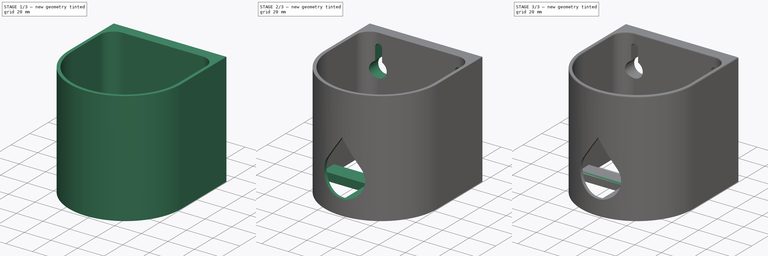
[diagram: build sequence overview — one tinted view per stage of 3, left to right]
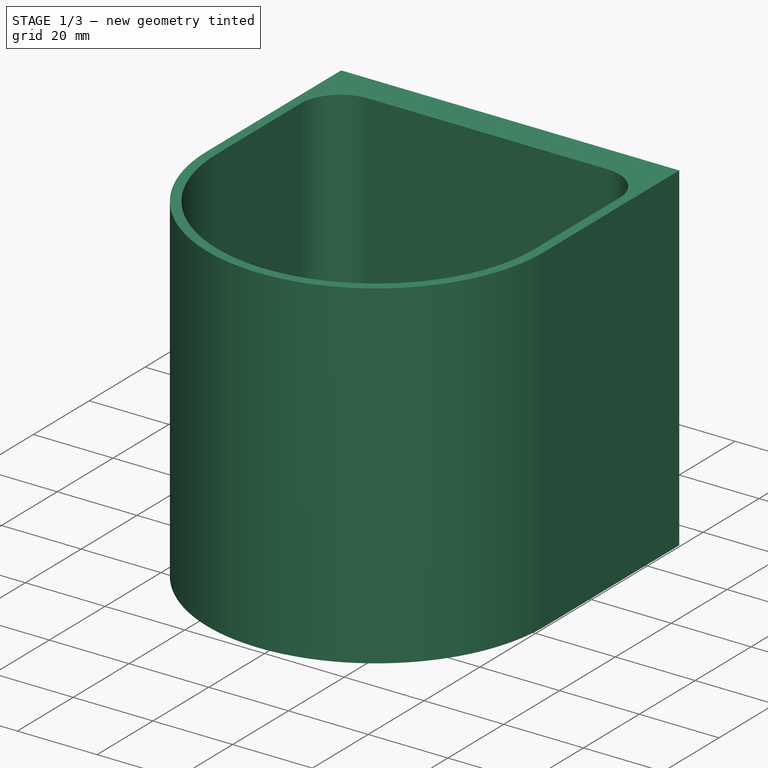
[diagram: stage 1 of 3 — iso view after this stage's code; geometry added in this stage tinted green]
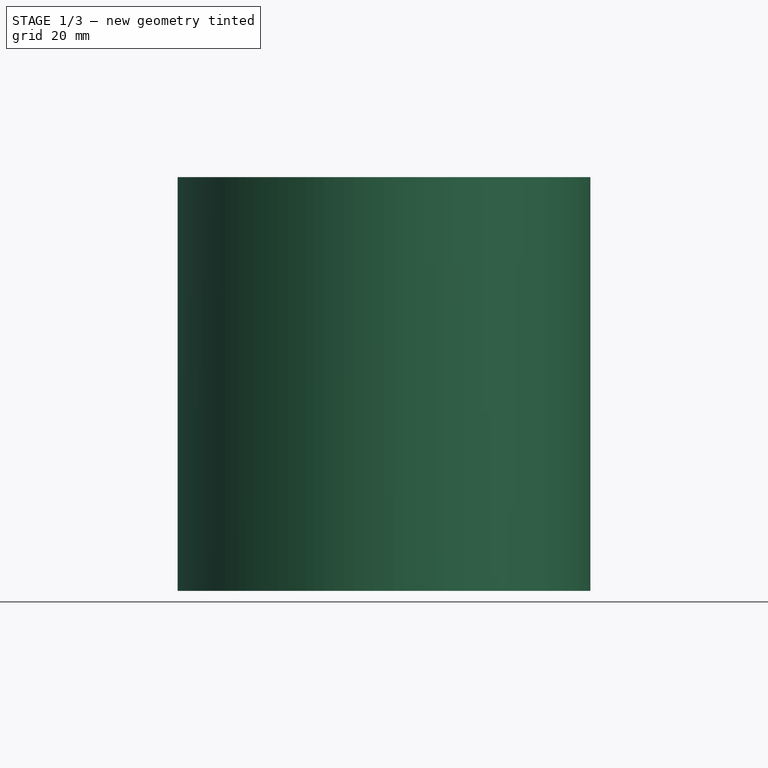
[diagram: stage 1 of 3 — front view after this stage's code; geometry added in this stage tinted green]
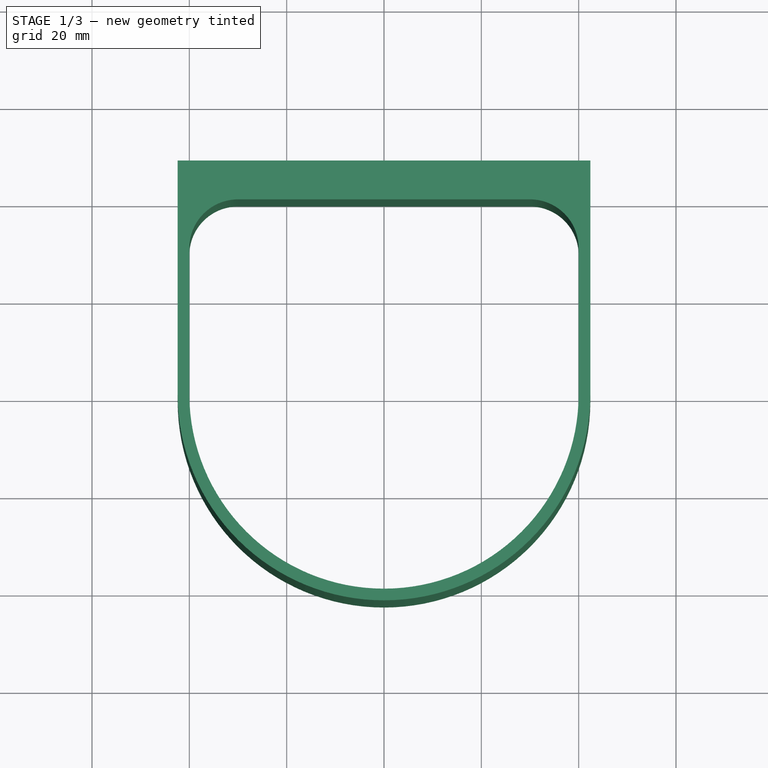
[diagram: stage 1 of 3 — top view after this stage's code; geometry added in this stage tinted green]
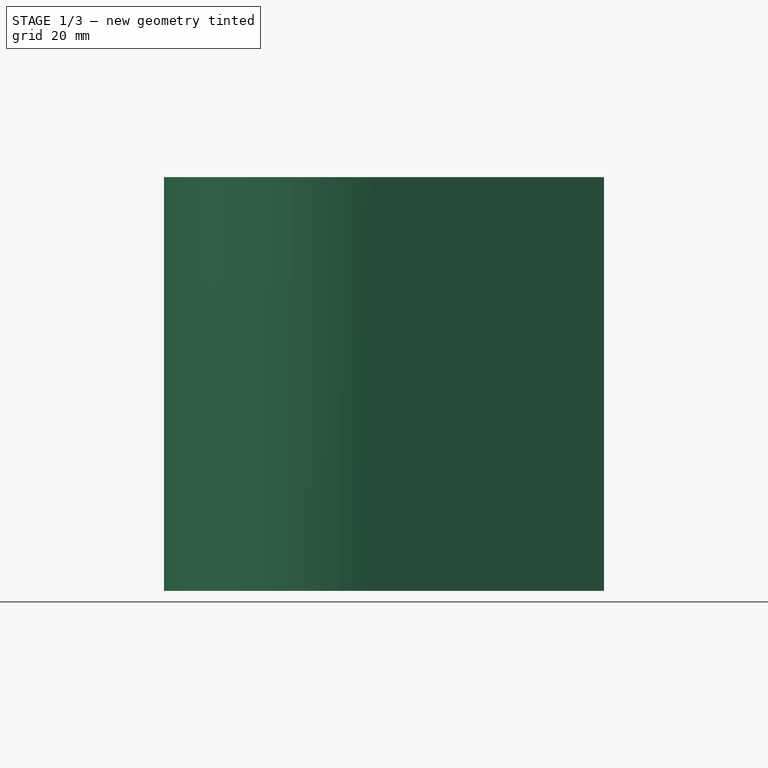
[diagram: stage 1 of 3 — right view after this stage's code; geometry added in this stage tinted green]
FCSTD DOCUMENT  (FreeCAD 0.21R33771 (Git))
Label: 20240804a_seifenhalter_wand
License: All rights reserved
LicenseURL: http://en.wikipedia.org/wiki/All_rights_reserved
objects: Sketcher::SketchObject×4, PartDesign::Pad×2, PartDesign::Pocket×2, PartDesign::Mirrored×1, PartDesign::Fillet×1, PartDesign::Chamfer×1, PartDesign::Body×1
note: 18 computed .brp shape members not serialized (recipe doc carries the construction recipe); baked Part::Feature solids carry a one-line shape summary decoded from their .brp

FEATURE [Sketcher::SketchObject] Sketch
  FullyConstrained = true
  MapMode = 5
  Support = -> [XY_Plane]
  sketch-geometry (10):
    g0: Circle CenterX=0 CenterY=0 CenterZ=0 NormalX=0 NormalY=0 NormalZ=1 AngleXU=0 Radius=40
    g1: LineSegment StartX=40 StartY=30 StartZ=0 EndX=40 EndY=-1.07e-14 EndZ=0
    g2: LineSegment StartX=0 StartY=40 StartZ=0 EndX=30 EndY=40 EndZ=0
    g3: ArcOfCircle CenterX=0 CenterY=0 CenterZ=0 NormalX=0 NormalY=0 NormalZ=1 AngleXU=0 Radius=40 StartAngle=4.71239 EndAngle=6.28319
    g4: ArcOfCircle CenterX=0 CenterY=0 CenterZ=0 NormalX=0 NormalY=0 NormalZ=1 AngleXU=0 Radius=42.4 StartAngle=4.71239 EndAngle=6.28319
    g5: LineSegment StartX=-7.3e-15 StartY=-40 StartZ=0 EndX=0 EndY=-42.4 EndZ=0
    g6: LineSegment StartX=0 StartY=48 StartZ=0 EndX=42.4 EndY=48 EndZ=0
    g7: LineSegment StartX=42.4 StartY=48 StartZ=0 EndX=42.4 EndY=0 EndZ=0
    g8: LineSegment StartX=0 StartY=48 StartZ=0 EndX=0 EndY=40 EndZ=0
    g9: ArcOfCircle CenterX=30 CenterY=30 CenterZ=0 NormalX=0 NormalY=0 NormalZ=1 AngleXU=0 Radius=10 StartAngle=0 EndAngle=1.5708
  constraints (28):
    c: Coincident(g0,g-1)
    c: Diameter(g0) = 80
    c: PointOnObject(g1,g-1)
    c: Vertical(g1)
    c: Horizontal(g2)
    c: PointOnObject(g2,g-2)
    c: Coincident(g3,g0)
    c: Coincident(g3,g1)
    c: PointOnObject(g3,g-2)
    c: Coincident(g4,g3)
    c: PointOnObject(g4,g-1)
    c: PointOnObject(g4,g-2)
    c: Coincident(g5,g3)
    c: Coincident(g5,g4)
    c: PointOnObject(g6,g-2)
    c: Horizontal(g6)
    c: Coincident(g7,g6)
    c: Coincident(g7,g4)
    c: Vertical(g7)
    c: Coincident(g8,g6)
    c: Coincident(g8,g2)
    c: DistanceY(g8,g8) = 8
    c: DistanceY(g5,g5) = 2.4
    c: Tangent(g1,g9) = 1.5708
    c: Tangent(g2,g9) = 1.5708
    c: Radius(g9) = 10
    c: PointOnObject(g2,g0)
    c: PointOnObject(g3,g0)
FEATURE [PartDesign::Pad] Pad
  Direction = (0,0,1)
  Length = 85
  Length2 = 10
  Profile = -> Sketch
  ReferenceAxis = -> Sketch [N_Axis]
  Type = 0
FEATURE [PartDesign::Mirrored] Mirrored
  BaseFeature = -> Pad
  MirrorPlane = -> Sketch [V_Axis]
  Originals = -> [Pad]
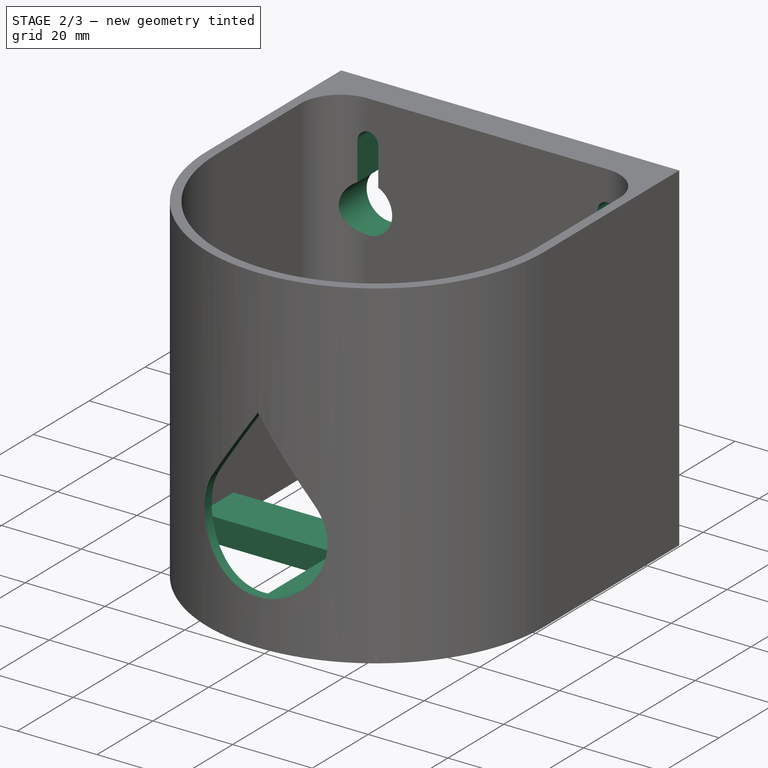
[diagram: stage 2 of 3 — iso view after this stage's code; geometry added in this stage tinted green]
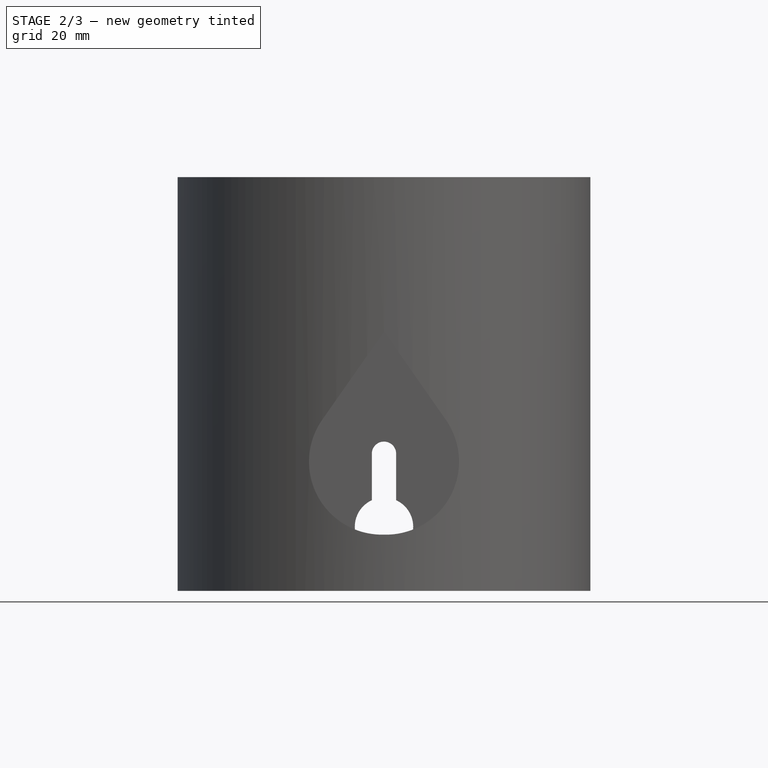
[diagram: stage 2 of 3 — front view after this stage's code; geometry added in this stage tinted green]
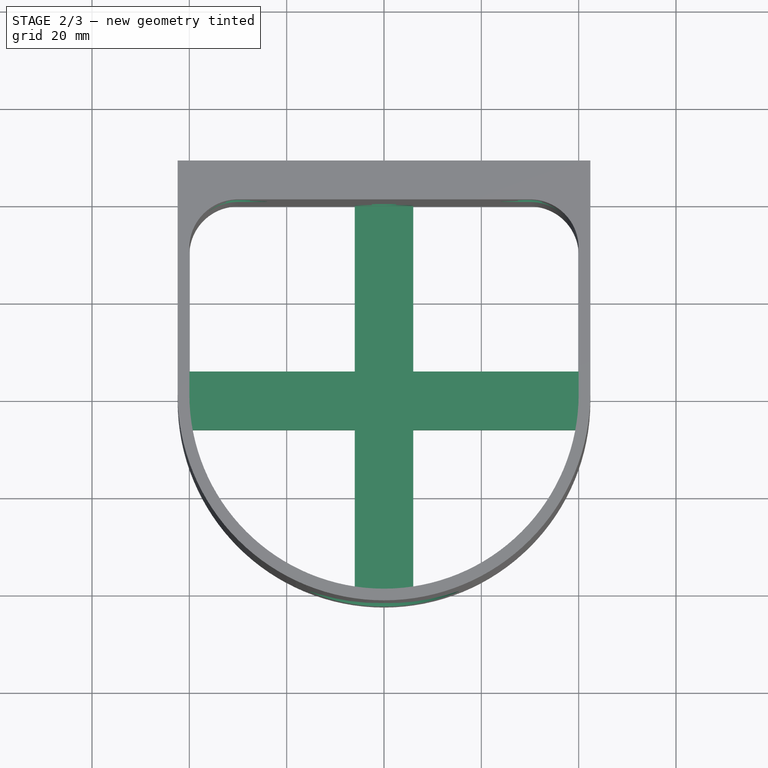
[diagram: stage 2 of 3 — top view after this stage's code; geometry added in this stage tinted green]
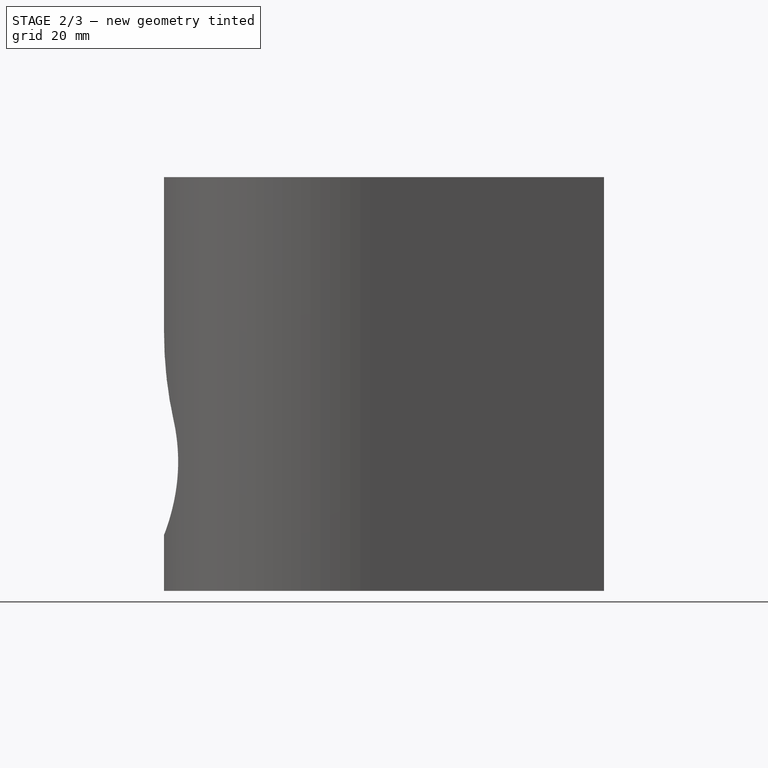
[diagram: stage 2 of 3 — right view after this stage's code; geometry added in this stage tinted green]
FEATURE [Sketcher::SketchObject] Sketch001
  FullyConstrained = false
  MapMode = 5
  Support = -> [XY_Plane]
  sketch-geometry (17):
    g0: LineSegment StartX=6 StartY=-41.5072 StartZ=0 EndX=6 EndY=-6 EndZ=0
    g1: LineSegment StartX=6 StartY=41.5072 StartZ=0 EndX=-6 EndY=41.5072 EndZ=0
    g2: LineSegment StartX=-6 StartY=41.5072 StartZ=0 EndX=-6 EndY=6 EndZ=0
    g3: LineSegment StartX=-6 StartY=-41.5072 StartZ=0 EndX=6 EndY=-41.5072 EndZ=0
    g4: GeomPoint X=0 Y=0 Z=0
    g5: LineSegment StartX=40.956 StartY=-6 StartZ=0 EndX=40.956 EndY=6 EndZ=0
    g6: LineSegment StartX=40.956 StartY=6 StartZ=0 EndX=6 EndY=6 EndZ=0
    g7: LineSegment StartX=-40.956 StartY=6 StartZ=0 EndX=-40.956 EndY=-6 EndZ=0
    g8: LineSegment StartX=-40.956 StartY=-6 StartZ=0 EndX=-6 EndY=-6 EndZ=0
    g9: GeomPoint X=0 Y=0 Z=0
    g10: LineSegment StartX=-6 StartY=-6 StartZ=0 EndX=-6 EndY=-41.5072 EndZ=0
    g11: LineSegment StartX=-6 StartY=6 StartZ=0 EndX=-40.956 EndY=6 EndZ=0
    g12: LineSegment StartX=6 StartY=6 StartZ=0 EndX=6 EndY=41.5072 EndZ=0
    g13: LineSegment StartX=6 StartY=-6 StartZ=0 EndX=40.956 EndY=-6 EndZ=0
    g14: LineSegment StartX=6 StartY=6 StartZ=0 EndX=-6 EndY=-6 EndZ=0
    g15: LineSegment StartX=6 StartY=6 StartZ=0 EndX=-6 EndY=6 EndZ=0
    g16: LineSegment StartX=6 StartY=-6 StartZ=0 EndX=-6 EndY=-6 EndZ=0
  constraints (39):
    c: Coincident(g12,g1)
    c: Coincident(g1,g2)
    c: Coincident(g10,g3)
    c: Coincident(g3,g0)
    c: Horizontal(g1)
    c: Vertical(g0)
    c: Vertical(g2)
    c: Symmetric(g1,g0,g4)
    c: Coincident(g4,g-1)
    c: Coincident(g5,g6)
    c: Coincident(g11,g7)
    c: Coincident(g7,g8)
    c: Coincident(g13,g5)
    c: Horizontal(g6)
    c: Horizontal(g8)
    c: Vertical(g5)
    c: Vertical(g7)
    c: Symmetric(g11,g5,g9)
    c: Coincident(g9,g4)
    c: Coincident(g11,g2)
    c: Coincident(g12,g6)
    c: Coincident(g8,g10)
    c: Coincident(g13,g0)
    c: Horizontal(g13)
    c: Coincident(g14,g6)
    c: Coincident(g14,g8)
    c: Horizontal(g11)
    c: Vertical(g10)
    c: Vertical(g12)
    c: PointOnObject(g4,g14)
    c: Symmetric(g0,g3,g-2)
    c: Coincident(g15,g6)
    c: Coincident(g15,g2)
    c: Horizontal(g15)
    c: Coincident(g16,g0)
    c: Coincident(g16,g8)
    c: Horizontal(g16)
    c: DistanceX(g3,g0) = 12
    c: DistanceY(g5,g5) = 12
FEATURE [PartDesign::Pad] Pad001
  BaseFeature = -> Mirrored
  Direction = (0,0,1)
  Length = 6
  Length2 = 10
  Profile = -> Sketch001
  ReferenceAxis = -> Sketch001 [N_Axis]
  Type = 0
FEATURE [Sketcher::SketchObject] Sketch002
  FullyConstrained = false
  MapMode = 5
  Placement = pos=(0,0,0) rot=(1,0,0;1.5708rad)
  Support = -> [XZ_Plane]
  sketch-geometry (8):
    g0: LineSegment StartX=0 StartY=53.2833 StartZ=0 EndX=-12.6989 EndY=35.1473 EndZ=0
    g1: LineSegment StartX=-0.411638 StartY=11.5437 StartZ=0 EndX=0.411638 EndY=11.5437 EndZ=0
    g2: LineSegment StartX=12.6989 StartY=35.1473 StartZ=0 EndX=0 EndY=53.2833 EndZ=0
    g3: Circle CenterX=0 CenterY=22.1812 CenterZ=0 NormalX=0 NormalY=0 NormalZ=1 AngleXU=0 Radius=31.1021
    g4: ArcOfCircle CenterX=0.411638 CenterY=26.5437 CenterZ=0 NormalX=0 NormalY=0 NormalZ=1 AngleXU=0 Radius=15 StartAngle=4.71239 EndAngle=6.89405
    g5: GeomPoint X=29.2264 Y=11.5437 Z=0
    g6: ArcOfCircle CenterX=-0.411638 CenterY=26.5437 CenterZ=0 NormalX=0 NormalY=0 NormalZ=1 AngleXU=0 Radius=15 StartAngle=2.53073 EndAngle=4.71239
    g7: GeomPoint X=-29.2264 Y=11.5437 Z=0
  constraints (18):
    c: Coincident(g2,g0)
    c: PointOnObject(g7,g3)
    c: PointOnObject(g5,g3)
    c: PointOnObject(g2,g3)
    c: PointOnObject(g3,g-2)
    c: PointOnObject(g0,g-2)
    c: PointOnObject(g5,g1)
    c: PointOnObject(g5,g2)
    c: Tangent(g1,g4) = -1.5708
    c: Tangent(g2,g4) = -1.5708
    c: PointOnObject(g7,g0)
    c: PointOnObject(g7,g1)
    c: Tangent(g0,g6) = -1.5708
    c: Tangent(g1,g6) = -1.5708
    c: Equal(g4,g6)
    c: Radius(g4) = 15
    c: Horizontal(g1)
    c: Angle(g0,g2) = 1.22173
FEATURE [PartDesign::Pocket] Pocket
  BaseFeature = -> Pad001
  Direction = (0,1,2e-16)
  Length = 5
  Length2 = 5
  Profile = -> Sketch002
  ReferenceAxis = -> Sketch002 [N_Axis]
  Reversed = true
  Type = 1
FEATURE [Sketcher::SketchObject] Sketch003
  FullyConstrained = false
  MapMode = 5
  Placement = pos=(0,0,0) rot=(1,0,0;1.5708rad)
  Support = -> [XZ_Plane]
  sketch-geometry (15):
    g0: ArcOfCircle CenterX=30 CenterY=60 CenterZ=0 NormalX=0 NormalY=0 NormalZ=1 AngleXU=0 Radius=6 StartAngle=2.00057 EndAngle=7.42421
    g1: ArcOfCircle CenterX=30 CenterY=75 CenterZ=0 NormalX=0 NormalY=0 NormalZ=1 AngleXU=0 Radius=2.5 StartAngle=-1.8e-15 EndAngle=3.14159
    g2: LineSegment StartX=27.5 StartY=75 StartZ=0 EndX=27.5 EndY=65.4544 EndZ=0
    g3: LineSegment StartX=32.5 StartY=65.4544 StartZ=0 EndX=32.5 EndY=75 EndZ=0
    g4: LineSegment StartX=30 StartY=75 StartZ=0 EndX=30 EndY=60 EndZ=0
    g5: ArcOfCircle CenterX=-30 CenterY=60 CenterZ=0 NormalX=0 NormalY=0 NormalZ=1 AngleXU=0 Radius=6 StartAngle=2.00057 EndAngle=7.42421
    g6: ArcOfCircle CenterX=-30 CenterY=75 CenterZ=0 NormalX=0 NormalY=0 NormalZ=1 AngleXU=0 Radius=2.5 StartAngle=3e-16 EndAngle=3.14159
    g7: LineSegment StartX=-32.5 StartY=75 StartZ=0 EndX=-32.5 EndY=65.4544 EndZ=0
    g8: LineSegment StartX=-27.5 StartY=65.4544 StartZ=0 EndX=-27.5 EndY=75 EndZ=0
    g9: LineSegment StartX=-30 StartY=75 StartZ=0 EndX=-30 EndY=60 EndZ=0
    g10: ArcOfCircle CenterX=0 CenterY=13.1636 CenterZ=0 NormalX=0 NormalY=0 NormalZ=1 AngleXU=0 Radius=6 StartAngle=2.00057 EndAngle=7.42421
    g11: ArcOfCircle CenterX=0 CenterY=28.1636 CenterZ=0 NormalX=0 NormalY=0 NormalZ=1 AngleXU=0 Radius=2.5 StartAngle=0 EndAngle=3.14159
    g12: LineSegment StartX=-2.5 StartY=28.1636 StartZ=0 EndX=-2.5 EndY=18.6179 EndZ=0
    g13: LineSegment StartX=2.5 StartY=18.6179 StartZ=0 EndX=2.5 EndY=28.1636 EndZ=0
    g14: LineSegment StartX=0 StartY=28.1636 StartZ=0 EndX=0 EndY=13.1636 EndZ=0
  constraints (40):
    c: Tangent(g1,g2) = -1.5708
    c: Tangent(g3,g1) = -1.5708
    c: Vertical(g2)
    c: Diameter(g0) = 12
    c: DistanceX(g1,g1) = 5
    c: Coincident(g2,g0)
    c: Coincident(g3,g0)
    c: DistanceY(g0,g1) = 15
    c: Coincident(g4,g1)
    c: Coincident(g4,g0)
    c: Vertical(g4)
    c: Vertical(g3)
    c: Tangent(g6,g7) = -1.5708
    c: Tangent(g8,g6) = -1.5708
    c: Vertical(g7)
    c: Equal(g0,g5) = 12
    c: Equal(g1,g6) = 5
    c: Coincident(g7,g5)
    c: Coincident(g8,g5)
    c: DistanceY(g5,g6) = 15
    c: Coincident(g9,g6)
    c: Coincident(g9,g5)
    c: Vertical(g9)
    c: Vertical(g8)
    c: Symmetric(g1,g6,g-2)
    c: DistanceX(g0) = 30
    c: DistanceY(g0) = 60
    c: Tangent(g11,g12) = -1.5708
    c: Tangent(g13,g11) = -1.5708
    c: Vertical(g12)
    c: Equal(g0,g10) = 12
    c: Equal(g1,g11) = 5
    c: Coincident(g12,g10)
    c: Coincident(g13,g10)
    c: DistanceY(g10,g11) = 15
    c: Coincident(g14,g11)
    c: Coincident(g14,g10)
    c: Vertical(g14)
    c: Vertical(g13)
    c: PointOnObject(g11,g-2)
FEATURE [PartDesign::Pocket] Pocket001
  BaseFeature = -> Pocket
  Direction = (0,1,2e-16)
  Length = 5
  Length2 = 5
  Profile = -> Sketch003
  ReferenceAxis = -> Sketch003 [N_Axis]
  Type = 1
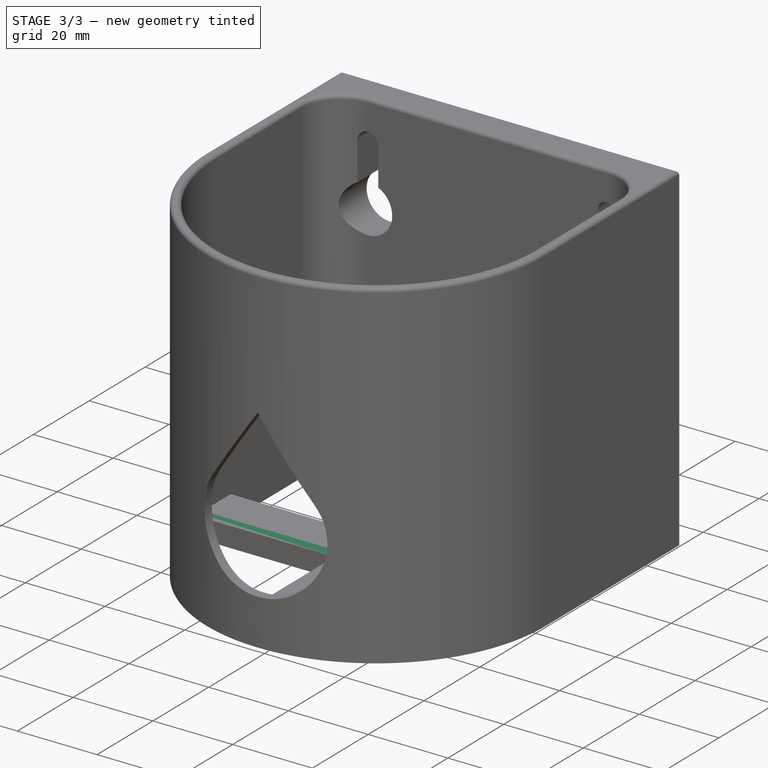
[diagram: stage 3 of 3 — iso view after this stage's code; geometry added in this stage tinted green]
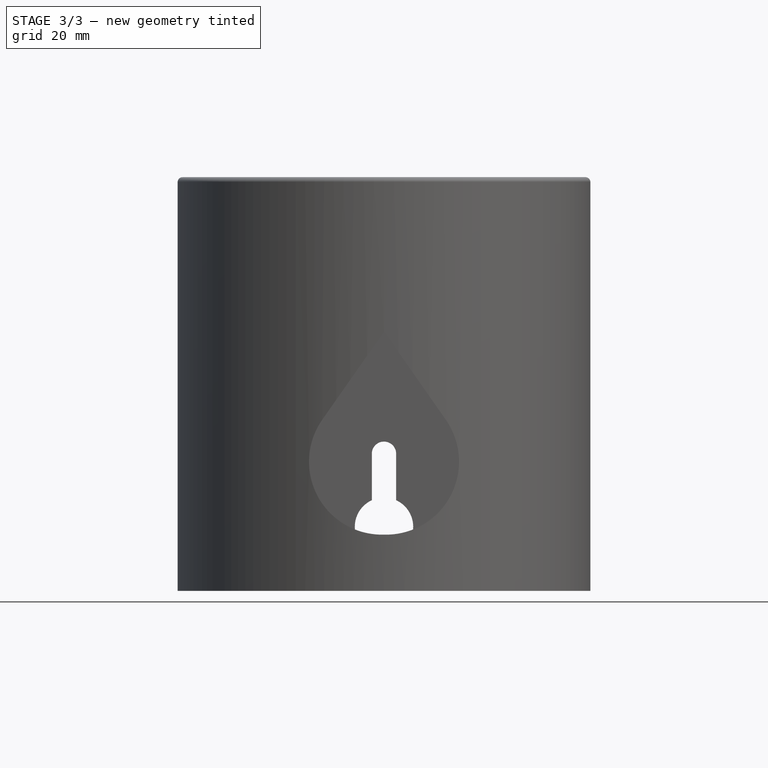
[diagram: stage 3 of 3 — front view after this stage's code; geometry added in this stage tinted green]
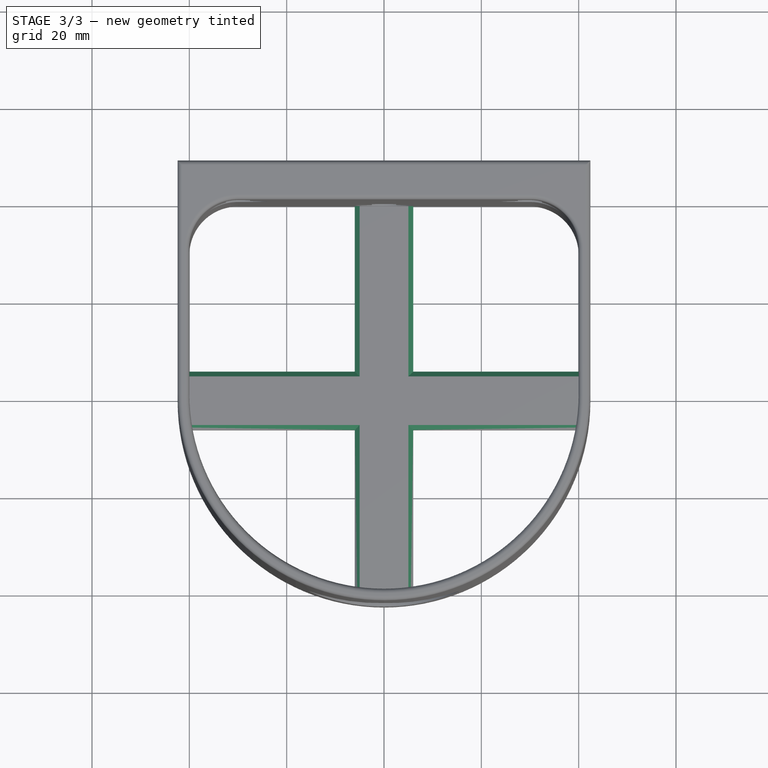
[diagram: stage 3 of 3 — top view after this stage's code; geometry added in this stage tinted green]
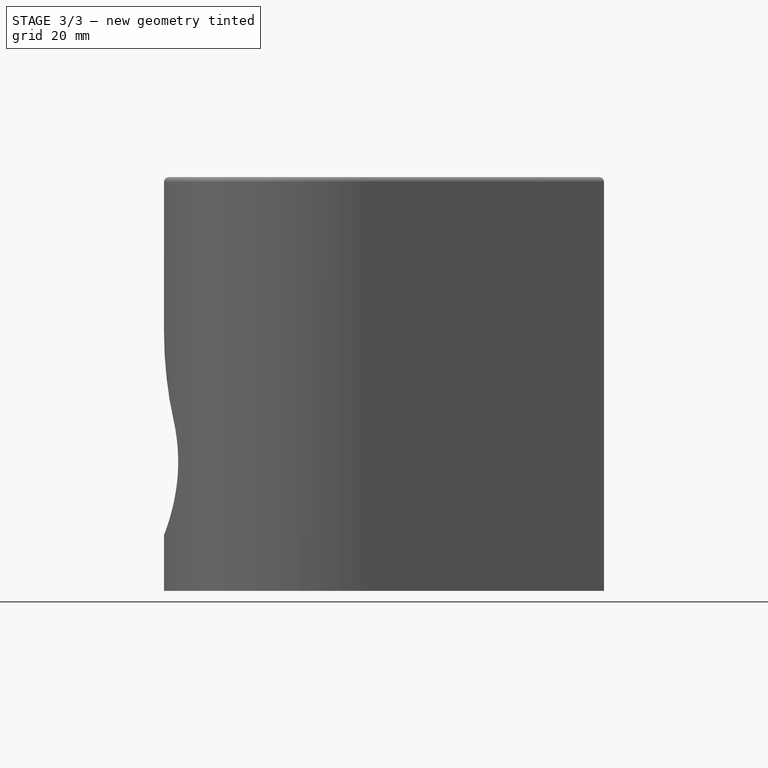
[diagram: stage 3 of 3 — right view after this stage's code; geometry added in this stage tinted green]
FEATURE [PartDesign::Fillet] Fillet
  Base = -> Pocket001 [Face30]
  BaseFeature = -> Pocket001
  Radius = 1
  SupportTransform = false
  UseAllEdges = false
FEATURE [PartDesign::Chamfer] Chamfer
  Angle = 45
  Base = -> Fillet [Edge28,Edge27,Edge24,Edge23,Edge34,Edge33,Edge32,Edge31]
  BaseFeature = -> Fillet
  ChamferType = 0
  FlipDirection = false
  Size = 1
  Size2 = 1
  SupportTransform = false
  UseAllEdges = false
FEATURE [PartDesign::Body] Body  label="body"
  Group = -> [Sketch,Pad,Mirrored,Sketch001,Pad001,Sketch002,Pocket,Sketch003,Pocket001,Fillet,Chamfer]
  Origin = -> Origin
  Tip = -> Chamfer
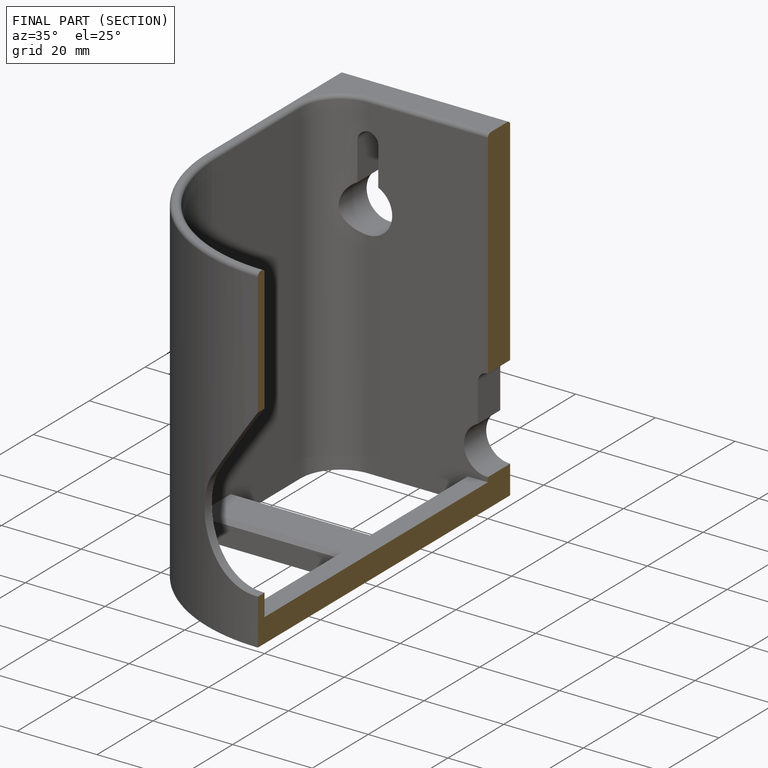
[diagram: finished part — half-section view (interior)]
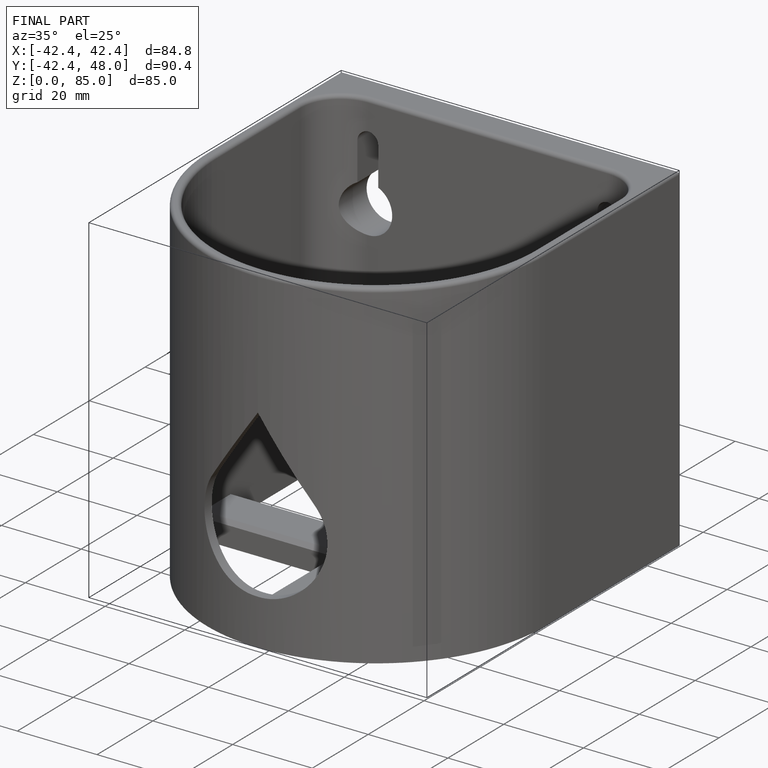
[diagram: finished part — iso view with bounding-box wireframe]
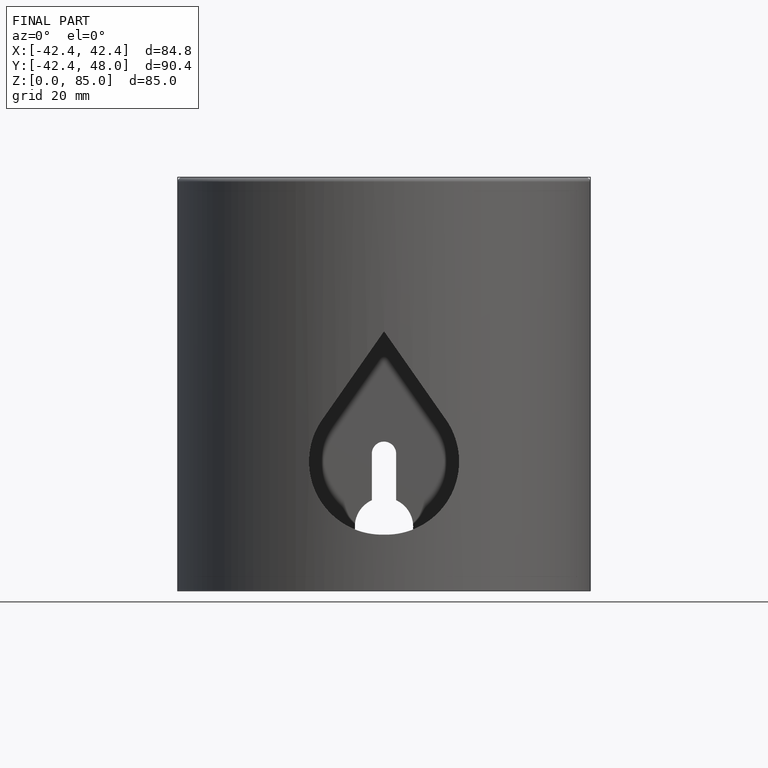
[diagram: finished part — front view with bounding-box wireframe]
